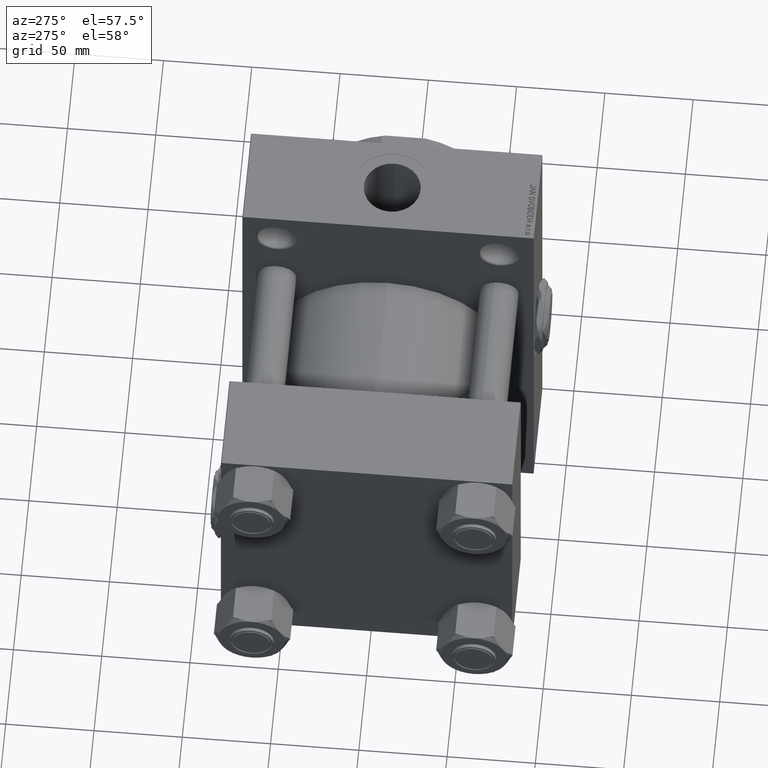
[diagram: clean part render]
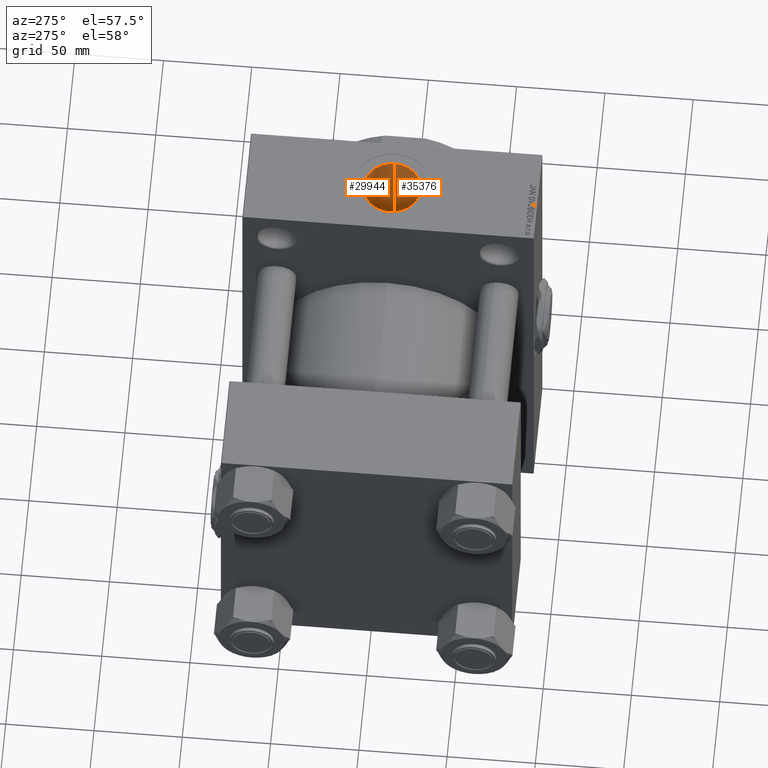
[diagram: same view with one multi-face feature highlighted, each face labeled with its STEP entity id]
A machine part, auxiliary view. The highlighted faces form ONE feature: a constant-radius fillet chain: 2 tangent blend faces with common blend radius 16.12 mm. The faces share edges in the B-rep.
Their STEP definitions:
[1] entity #35376 (Cylinder):
#722 = EDGE_CURVE ( 'NONE', #12323, #44570, #19705, .T. ) ;
#803 = AXIS2_PLACEMENT_3D ( 'NONE', #3509, #33490, #29729 ) ;
#835 = CARTESIAN_POINT ( 'NONE',  ( 176.6931090995301190, -12.08387147005236706, 61.57756697528341050 ) ) ;
#1822 = CARTESIAN_POINT ( 'NONE',  ( 150.1193842262599389, -2.789912960716225410, 47.92009399672301129 ) ) ;
#2066 = CARTESIAN_POINT ( 'NONE',  ( 165.0177403313186630, -16.10526306269807861, 45.21748191980999820 ) ) ;
#2321 = CARTESIAN_POINT ( 'NONE',  ( 150.6039488246599376, -4.827023044815289765, 47.76144096132668437 ) ) ;
#2428 = CIRCLE ( 'NONE', #803, 16.11999999999999389 ) ;
#2569 = CARTESIAN_POINT ( 'NONE',  ( 162.2424279243942351, -15.69133835691058998, 45.36322908574961588 ) ) ;
#3136 = CARTESIAN_POINT ( 'NONE',  ( 182.1200000000000614, 1.233548639465218517E-14, 62.75000000000001421 ) ) ;
#3509 = CARTESIAN_POINT ( 'NONE',  ( 165.9999999999999716, -3.116194171391063807E-14, 123.2999999999999972 ) ) ;
#4127 = CARTESIAN_POINT ( 'NONE',  ( 179.0858583400532495, -9.440766866681590486, 62.03836196695988292 ) ) ;
#4801 = CARTESIAN_POINT ( 'NONE',  ( 149.8799999999999955, -3.116194171391063807E-14, 123.2999999999999972 ) ) ;
#5270 = ORIENTED_EDGE ( 'NONE', *, *, #43371, .F. ) ;
#5601 = CARTESIAN_POINT ( 'NONE',  ( 152.6971890334757518, -9.210764258183600006, 47.12401255044404991 ) ) ;
#6982 = ORIENTED_EDGE ( 'NONE', *, *, #44591, .T. ) ;
#7293 = EDGE_CURVE ( 'NONE', #30975, #32994, #22079, .T. ) ;
#7433 = AXIS2_PLACEMENT_3D ( 'NONE', #43775, #21334, #44263 ) ;
#8150 = CARTESIAN_POINT ( 'NONE',  ( 178.1966697685148233, -10.56451674639078853, 61.85691085472824824 ) ) ;
#8261 = LINE ( 'NONE', #16059, #13544 ) ;
#9380 = CARTESIAN_POINT ( 'NONE',  ( 157.1578453829135356, -13.49619290271693650, 46.06505067908694429 ) ) ;
#9874 = CARTESIAN_POINT ( 'NONE',  ( 172.5268965211029695, -14.80427523608108231, 45.66526315275407910 ) ) ;
#10114 = CARTESIAN_POINT ( 'NONE',  ( 149.8799999999999955, -0.6969441322252637461, 48.00000000000000711 ) ) ;
#12323 = VERTEX_POINT ( 'NONE', #37987 ) ;
#12987 = CARTESIAN_POINT ( 'NONE',  ( 182.1199999999999761, -2.918781107368510798E-14, 146.2999999999999829 ) ) ;
#13544 = VECTOR ( 'NONE', #46062, 1000.000000000000000 ) ;
#13899 = CARTESIAN_POINT ( 'NONE',  ( 168.5014073238729679, -15.98700906778727315, 45.26084044427021524 ) ) ;
#14712 = CARTESIAN_POINT ( 'NONE',  ( 182.1200000000000045, -1.446404479253755815, 62.74999999999998579 ) ) ;
#15457 = CARTESIAN_POINT ( 'NONE',  ( 173.7400000000000091, -14.14025459459623590, 61.13604256083313260 ) ) ;
#16059 = CARTESIAN_POINT ( 'NONE',  ( 149.8799999999999955, -3.116194171391063807E-14, 146.2999999999999829 ) ) ;
#16200 = CARTESIAN_POINT ( 'NONE',  ( 177.7179939142464491, -11.09284231136825660, 61.76378836952420670 ) ) ;
#17178 = CARTESIAN_POINT ( 'NONE',  ( 149.9250024996750028, -1.394131805555121062, 47.98482823620874171 ) ) ;
#17427 = CARTESIAN_POINT ( 'NONE',  ( 162.9228835794722556, -15.83909022528225741, 45.31153598099023583 ) ) ;
#17478 = EDGE_LOOP ( 'NONE', ( #22585, #6982, #42115, #27172, #32127, #5270 ) ) ;
#17929 = CARTESIAN_POINT ( 'NONE',  ( 160.2496555027516081, -15.07580435985670242, 45.57198320915298950 ) ) ;
#18815 = VERTEX_POINT ( 'NONE', #4801 ) ;
#18864 = CARTESIAN_POINT ( 'NONE',  ( 150.8254561955876341, -5.483383170357729597, 47.69014482412352862 ) ) ;
#18990 = CARTESIAN_POINT ( 'NONE',  ( 181.1137499233100527, -5.651720081446736543, 62.49847482008421906 ) ) ;
#19029 = EDGE_CURVE ( 'NONE', #12323, #32994, #35401, .T. ) ;
#19705 = B_SPLINE_CURVE_WITH_KNOTS ( 'NONE', 3,
 ( #37073, #9874, #40113, #13899, #48409, #2066, #29035, #17427, #2569, #32556, #17929, #22647, #43894, #9380, #40362, #20964, #24748, #44383, #5601, #25246, #29279, #41799, #48158, #18864, #2321, #40607, #44633, #1822, #33302, #17178, #10114, #38014 ),
 .UNSPECIFIED., .F., .F.,
 ( 4, 2, 2, 2, 2, 2, 2, 2, 2, 2, 2, 2, 2, 2, 2, 4 ),
 ( 0.01730946740486644791, 0.02149205991460770640, 0.02567465242434896489, 0.02776594867921955076, 0.02985724493409013663, 0.03194854118896071904, 0.03403983744383130838, 0.03613113369870189079, 0.03822242995357248013, 0.04240502246331364494, 0.04345067059074896043, 0.04449631871818426898, 0.04658761497305493465, 0.04763326310049026402, 0.04867891122792559339, 0.05077020748279625212 ),
 .UNSPECIFIED. ) ;
#20843 = CYLINDRICAL_SURFACE ( 'NONE', #7433, 16.11999999999999389 ) ;
#20964 = CARTESIAN_POINT ( 'NONE',  ( 155.5016505005564795, -12.25223426699439422, 46.41205426771291798 ) ) ;
#21334 = DIRECTION ( 'NONE',  ( 0.000000000000000000, 0.000000000000000000, -1.000000000000000000 ) ) ;
#22079 = B_SPLINE_CURVE_WITH_KNOTS ( 'NONE', 3,
 ( #3136, #14712, #30098, #45446, #18990, #34357, #30597, #45952, #4127, #8150, #16200, #835, #34852, #31583, #46932, #15457 ),
 .UNSPECIFIED., .F., .F.,
 ( 4, 2, 2, 2, 2, 2, 2, 4 ),
 ( 0.01725131248101617956, 0.02156005667283688448, 0.02371442876874723521, 0.02586880086465758941, 0.02802317296056794360, 0.03017754505647830127, 0.03233191715238865893, 0.03448628924829900966 ),
 .UNSPECIFIED. ) ;
#22585 = ORIENTED_EDGE ( 'NONE', *, *, #29553, .F. ) ;
#22647 = CARTESIAN_POINT ( 'NONE',  ( 158.9619646494107883, -14.51938006037327611, 45.75230194618004731 ) ) ;
#23078 = DIRECTION ( 'NONE',  ( -0.000000000000000000, -0.000000000000000000, 1.000000000000000000 ) ) ;
#24082 = CARTESIAN_POINT ( 'NONE',  ( 182.1199999999999761, -2.918781107368510798E-14, 123.2999999999999972 ) ) ;
#24748 = CARTESIAN_POINT ( 'NONE',  ( 154.9799852017249862, -11.78519132341143738, 46.53349822920894496 ) ) ;
#25246 = CARTESIAN_POINT ( 'NONE',  ( 151.8313680696431049, -7.695846547749233046, 47.38004186343273716 ) ) ;
#25517 = VECTOR ( 'NONE', #23078, 1000.000000000000000 ) ;
#27172 = ORIENTED_EDGE ( 'NONE', *, *, #19029, .F. ) ;
#28914 = FACE_OUTER_BOUND ( 'NONE', #17478, .T. ) ;
#29035 = CARTESIAN_POINT ( 'NONE',  ( 164.3089344729780805, -16.04636164410583987, 45.23854938111714574 ) ) ;
#29279 = CARTESIAN_POINT ( 'NONE',  ( 151.6675240934841895, -7.386171131807184764, 47.42936155241066842 ) ) ;
#29553 = EDGE_CURVE ( 'NONE', #37043, #18815, #2428, .T. ) ;
#29729 = DIRECTION ( 'NONE',  ( 1.000000000000000000, 0.000000000000000000, 0.000000000000000000 ) ) ;
#30098 = CARTESIAN_POINT ( 'NONE',  ( 181.9288187961556389, -2.869591190657372781, 62.70005304133129442 ) ) ;
#30597 = CARTESIAN_POINT ( 'NONE',  ( 180.2299047929868152, -7.607813285098392164, 62.29021573812201495 ) ) ;
#30975 = VERTEX_POINT ( 'NONE', #39451 ) ;
#31583 = CARTESIAN_POINT ( 'NONE',  ( 174.9837016728169203, -13.40408882547880509, 61.30322131436631139 ) ) ;
#32127 = ORIENTED_EDGE ( 'NONE', *, *, #722, .T. ) ;
#32556 = CARTESIAN_POINT ( 'NONE',  ( 160.9058140718719585, -15.30969356532286341, 45.49344936859772304 ) ) ;
#32994 = VERTEX_POINT ( 'NONE', #48955 ) ;
#33302 = CARTESIAN_POINT ( 'NONE',  ( 150.0618984349625578, -2.440288002312380744, 47.93919931072274920 ) ) ;
#33490 = DIRECTION ( 'NONE',  ( -0.000000000000000000, -0.000000000000000000, -1.000000000000000000 ) ) ;
#34357 = CARTESIAN_POINT ( 'NONE',  ( 180.5529646384133002, -6.969834779711515438, 62.36523629281986558 ) ) ;
#34852 = CARTESIAN_POINT ( 'NONE',  ( 176.1469099290165161, -12.54658168107651051, 61.48445192794335412 ) ) ;
#35376 = ADVANCED_FACE ( 'NONE', ( #28914 ), #20843, .F. ) ;
#35401 = LINE ( 'NONE', #46009, #25517 ) ;
#37043 = VERTEX_POINT ( 'NONE', #24082 ) ;
#37073 = CARTESIAN_POINT ( 'NONE',  ( 173.7400000000000091, -14.14025459459623590, 45.86995966861100982 ) ) ;
#37987 = CARTESIAN_POINT ( 'NONE',  ( 173.7400000000000091, -14.14025459459623590, 45.86995966861100982 ) ) ;
#38014 = CARTESIAN_POINT ( 'NONE',  ( 149.8799999999999955, 5.879090918007074346E-15, 48.00000000000000711 ) ) ;
#39179 = DIRECTION ( 'NONE',  ( 0.000000000000000000, 0.000000000000000000, -1.000000000000000000 ) ) ;
#39451 = CARTESIAN_POINT ( 'NONE',  ( 182.1200000000000614, 1.233548639465218517E-14, 62.75000000000001421 ) ) ;
#40113 = CARTESIAN_POINT ( 'NONE',  ( 171.2382520628491704, -15.31019963486740032, 45.49424055631333630 ) ) ;
#40183 = CARTESIAN_POINT ( 'NONE',  ( 149.8799999999999955, 5.879090918007074346E-15, 48.00000000000000711 ) ) ;
#40362 = CARTESIAN_POINT ( 'NONE',  ( 156.5894716896488603, -13.10627878788852030, 46.17814940225067488 ) ) ;
#40607 = CARTESIAN_POINT ( 'NONE',  ( 150.3349467463776250, -3.818578580884662177, 47.84905752641297028 ) ) ;
#41753 = VECTOR ( 'NONE', #39179, 1000.000000000000000 ) ;
#41799 = CARTESIAN_POINT ( 'NONE',  ( 151.3622568011778071, -6.761054920981769634, 47.52249990912831379 ) ) ;
#42115 = ORIENTED_EDGE ( 'NONE', *, *, #7293, .T. ) ;
#42966 = LINE ( 'NONE', #12987, #41753 ) ;
#43371 = EDGE_CURVE ( 'NONE', #18815, #44570, #8261, .T. ) ;
#43775 = CARTESIAN_POINT ( 'NONE',  ( 165.9999999999999716, -3.116194171391063807E-14, 146.2999999999999829 ) ) ;
#43894 = CARTESIAN_POINT ( 'NONE',  ( 158.3439918909934079, -14.20269203266186686, 45.85214996005703370 ) ) ;
#44263 = DIRECTION ( 'NONE',  ( -1.000000000000000000, 0.000000000000000000, 0.000000000000000000 ) ) ;
#44383 = CARTESIAN_POINT ( 'NONE',  ( 153.5284591875429214, -10.30646944873276638, 46.89142198111669302 ) ) ;
#44570 = VERTEX_POINT ( 'NONE', #40183 ) ;
#44591 = EDGE_CURVE ( 'NONE', #37043, #30975, #42966, .T. ) ;
#44633 = CARTESIAN_POINT ( 'NONE',  ( 150.2558561993275248, -3.478434657325286672, 47.87504062993428988 ) ) ;
#45446 = CARTESIAN_POINT ( 'NONE',  ( 181.3520876524982555, -4.969372210910893095, 62.55685426934635984 ) ) ;
#45952 = CARTESIAN_POINT ( 'NONE',  ( 179.4978733992990954, -8.841743442041519074, 62.12707439263353137 ) ) ;
#46009 = CARTESIAN_POINT ( 'NONE',  ( 173.7400000000000091, -14.14025459459623590, 146.2999999999999829 ) ) ;
#46062 = DIRECTION ( 'NONE',  ( 0.000000000000000000, 0.000000000000000000, -1.000000000000000000 ) ) ;
#46932 = CARTESIAN_POINT ( 'NONE',  ( 174.3751098904970149, -13.79261230007028161, 61.21644931185165461 ) ) ;
#48158 = CARTESIAN_POINT ( 'NONE',  ( 151.2202184905598585, -6.444565633109859526, 47.56650002770068397 ) ) ;
#48409 = CARTESIAN_POINT ( 'NONE',  ( 167.1172731320739331, -16.14205161217259032, 45.20436757325734334 ) ) ;
#48955 = CARTESIAN_POINT ( 'NONE',  ( 173.7400000000000091, -14.14025459459623590, 61.13604256083313260 ) ) ;
[2] entity #29944 (Cylinder):
#304 = CARTESIAN_POINT ( 'NONE',  ( 158.9636608794598374, 14.52014148039138419, 45.75205679854095564 ) ) ;
#371 = CARTESIAN_POINT ( 'NONE',  ( 182.0585561406243471, 1.452386327798592669, 62.73423914292479253 ) ) ;
#551 = CARTESIAN_POINT ( 'NONE',  ( 149.9249704188250973, 1.393120938056549463, 47.98483942807536096 ) ) ;
#703 = AXIS2_PLACEMENT_3D ( 'NONE', #30370, #20436, #19942 ) ;
#801 = CARTESIAN_POINT ( 'NONE',  ( 162.9160592526729090, 15.83767543707250880, 45.31203073889371069 ) ) ;
#2322 = CIRCLE ( 'NONE', #703, 16.11999999999999389 ) ;
#3416 = CARTESIAN_POINT ( 'NONE',  ( 181.8763463745155775, 2.883672403985895194, 62.68777930985194757 ) ) ;
#3668 = CARTESIAN_POINT ( 'NONE',  ( 180.2195483388237278, 7.626863845352516158, 62.28785541091767186 ) ) ;
#4582 = CARTESIAN_POINT ( 'NONE',  ( 160.2490641726749914, 15.07552035386557243, 45.57207364129578053 ) ) ;
#4801 = CARTESIAN_POINT ( 'NONE',  ( 149.8799999999999955, -3.116194171391063807E-14, 123.2999999999999972 ) ) ;
#5621 = ORIENTED_EDGE ( 'NONE', *, *, #44591, .F. ) ;
#6945 = CARTESIAN_POINT ( 'NONE',  ( 177.7057295386113935, 11.10599076379968508, 61.76143863433413372 ) ) ;
#7381 = CARTESIAN_POINT ( 'NONE',  ( 165.0067877690202067, 16.10465261015763616, 45.21769947908528309 ) ) ;
#7626 = CARTESIAN_POINT ( 'NONE',  ( 173.7400000000000375, 14.14025459459616840, 45.86995966861103113 ) ) ;
#7942 = CARTESIAN_POINT ( 'NONE',  ( 182.1199999999999477, 0.3619438538048549980, 62.75000000000000000 ) ) ;
#7970 = FACE_OUTER_BOUND ( 'NONE', #11316, .T. ) ;
#8261 = LINE ( 'NONE', #16059, #13544 ) ;
#8875 = EDGE_CURVE ( 'NONE', #28639, #31604, #44477, .T. ) ;
#10153 = CARTESIAN_POINT ( 'NONE',  ( 173.7400000000000375, 14.14025459459616840, 45.86995966861103113 ) ) ;
#11158 = CARTESIAN_POINT ( 'NONE',  ( 171.2123721950988511, 15.26979174243738591, 45.50718491713758596 ) ) ;
#11225 = CARTESIAN_POINT ( 'NONE',  ( 182.0218531635884460, 1.812320719047275652, 62.72484100374321514 ) ) ;
#11316 = EDGE_LOOP ( 'NONE', ( #5621, #32119, #48418, #31089, #22480, #27547 ) ) ;
#11406 = CARTESIAN_POINT ( 'NONE',  ( 172.5045609595395035, 14.76570521449223605, 45.67323470544516795 ) ) ;
#12480 = EDGE_CURVE ( 'NONE', #28639, #30975, #34332, .T. ) ;
#12987 = CARTESIAN_POINT ( 'NONE',  ( 182.1199999999999761, -2.918781107368510798E-14, 146.2999999999999829 ) ) ;
#13544 = VECTOR ( 'NONE', #46062, 1000.000000000000000 ) ;
#14079 = CARTESIAN_POINT ( 'NONE',  ( 173.7400000000000091, 14.14025459459617373, 61.13604256083314681 ) ) ;
#14751 = CARTESIAN_POINT ( 'NONE',  ( 176.1594946012741900, 12.59722227134139949, 61.48085737170002574 ) ) ;
#15179 = CARTESIAN_POINT ( 'NONE',  ( 168.4952049674536738, 15.98782192495555954, 45.26054414299466089 ) ) ;
#15672 = CARTESIAN_POINT ( 'NONE',  ( 170.5455056036847736, 15.48187014673268713, 45.43504730123787283 ) ) ;
#15915 = CARTESIAN_POINT ( 'NONE',  ( 150.1188171930568558, 2.786749855319910818, 47.92028185637968107 ) ) ;
#16059 = CARTESIAN_POINT ( 'NONE',  ( 149.8799999999999955, -3.116194171391063807E-14, 146.2999999999999829 ) ) ;
#18776 = CARTESIAN_POINT ( 'NONE',  ( 173.7400000000000091, 14.14025459459617373, 61.13604256083314681 ) ) ;
#18815 = VERTEX_POINT ( 'NONE', #4801 ) ;
#19213 = CARTESIAN_POINT ( 'NONE',  ( 149.8799999999999955, 5.879090918007074346E-15, 48.00000000000000711 ) ) ;
#19459 = CARTESIAN_POINT ( 'NONE',  ( 151.8344616837607362, 7.701502031907020651, 47.37911783819649969 ) ) ;
#19942 = DIRECTION ( 'NONE',  ( 1.000000000000000000, 0.000000000000000000, 0.000000000000000000 ) ) ;
#19949 = CARTESIAN_POINT ( 'NONE',  ( 164.2980790581978283, 16.04512757477887064, 45.23898732334281902 ) ) ;
#20120 = AXIS2_PLACEMENT_3D ( 'NONE', #23329, #22587, #26636 ) ;
#20436 = DIRECTION ( 'NONE',  ( -0.000000000000000000, -0.000000000000000000, -1.000000000000000000 ) ) ;
#20804 = CARTESIAN_POINT ( 'NONE',  ( 173.7400000000000091, 14.14025459459617373, 146.2999999999999829 ) ) ;
#22480 = ORIENTED_EDGE ( 'NONE', *, *, #8875, .F. ) ;
#22558 = CARTESIAN_POINT ( 'NONE',  ( 179.0844003929186101, 9.442843510694224562, 62.03805049906818425 ) ) ;
#22587 = DIRECTION ( 'NONE',  ( 0.000000000000000000, 0.000000000000000000, -1.000000000000000000 ) ) ;
#23086 = CYLINDRICAL_SURFACE ( 'NONE', #20120, 16.11999999999999389 ) ;
#23236 = CARTESIAN_POINT ( 'NONE',  ( 154.7441410745596784, 11.54469890651621888, 46.59167934632901620 ) ) ;
#23329 = CARTESIAN_POINT ( 'NONE',  ( 165.9999999999999716, -3.116194171391063807E-14, 146.2999999999999829 ) ) ;
#23831 = VECTOR ( 'NONE', #36424, 1000.000000000000000 ) ;
#24082 = CARTESIAN_POINT ( 'NONE',  ( 182.1199999999999761, -2.918781107368510798E-14, 123.2999999999999972 ) ) ;
#26532 = CARTESIAN_POINT ( 'NONE',  ( 151.2216128799661590, 6.447800440742311956, 47.56606597250565471 ) ) ;
#26605 = CARTESIAN_POINT ( 'NONE',  ( 181.4465573356519883, 4.624612475451906235, 62.58031416136807223 ) ) ;
#26636 = DIRECTION ( 'NONE',  ( -1.000000000000000000, 0.000000000000000000, 0.000000000000000000 ) ) ;
#26675 = EDGE_CURVE ( 'NONE', #18815, #37043, #2322, .T. ) ;
#26782 = CARTESIAN_POINT ( 'NONE',  ( 173.1316445098233316, 14.47325224060510429, 45.76730704959881990 ) ) ;
#27029 = CARTESIAN_POINT ( 'NONE',  ( 150.6039412762756626, 4.827166512395204556, 47.76144253405185225 ) ) ;
#27547 = ORIENTED_EDGE ( 'NONE', *, *, #12480, .T. ) ;
#27743 = EDGE_CURVE ( 'NONE', #44570, #31604, #46368, .T. ) ;
#28639 = VERTEX_POINT ( 'NONE', #14079 ) ;
#29944 = ADVANCED_FACE ( 'NONE', ( #7970 ), #23086, .F. ) ;
#30315 = CARTESIAN_POINT ( 'NONE',  ( 167.1105234336490355, 16.14276192669088417, 45.20411446845385939 ) ) ;
#30370 = CARTESIAN_POINT ( 'NONE',  ( 165.9999999999999716, -3.116194171391063807E-14, 123.2999999999999972 ) ) ;
#30383 = CARTESIAN_POINT ( 'NONE',  ( 182.1077163658963229, 0.7267219843898016229, 62.74684105231320785 ) ) ;
#30877 = CARTESIAN_POINT ( 'NONE',  ( 181.7323002327978259, 3.586673343346733933, 62.65125153309103467 ) ) ;
#30975 = VERTEX_POINT ( 'NONE', #39451 ) ;
#31053 = CARTESIAN_POINT ( 'NONE',  ( 154.9967153907675197, 11.78568579095606239, 46.53122192616324071 ) ) ;
#31089 = ORIENTED_EDGE ( 'NONE', *, *, #27743, .T. ) ;
#31304 = CARTESIAN_POINT ( 'NONE',  ( 150.2553793376022782, 3.476328853959464116, 47.87519739541681929 ) ) ;
#31604 = VERTEX_POINT ( 'NONE', #10153 ) ;
#32119 = ORIENTED_EDGE ( 'NONE', *, *, #26675, .F. ) ;
#33898 = CARTESIAN_POINT ( 'NONE',  ( 181.3396580496003594, 4.967822892727451922, 62.55397629739029242 ) ) ;
#34324 = CARTESIAN_POINT ( 'NONE',  ( 150.0614714914799777, 2.437406301587406343, 47.93934136742533525 ) ) ;
#34332 = B_SPLINE_CURVE_WITH_KNOTS ( 'NONE', 3,
 ( #18776, #45487, #14751, #6945, #37927, #22558, #42445, #3668, #45740, #37677, #38669, #33898, #26605, #30877, #3416, #11225, #371, #30383, #7942, #34885 ),
 .UNSPECIFIED., .F., .F.,
 ( 4, 2, 2, 2, 2, 2, 2, 2, 2, 4 ),
 ( 0.000000000000000000, 0.004312828120254117749, 0.006469242180381145832, 0.008625656240508174782, 0.01078207030063520200, 0.01186027733069869999, 0.01293848436076219972, 0.01509489842088919571, 0.01617310545095268851, 0.01725131248101617956 ),
 .UNSPECIFIED. ) ;
#34572 = CARTESIAN_POINT ( 'NONE',  ( 151.3640296295077974, 6.764931955851407608, 47.52195258659887855 ) ) ;
#34818 = CARTESIAN_POINT ( 'NONE',  ( 156.5918825648012955, 13.10788518647637346, 46.17767731078850346 ) ) ;
#34885 = CARTESIAN_POINT ( 'NONE',  ( 182.1200000000000614, 1.233548639465218517E-14, 62.75000000000001421 ) ) ;
#35313 = CARTESIAN_POINT ( 'NONE',  ( 150.3345544224279138, 3.817021750896531618, 47.84918575400384810 ) ) ;
#36424 = DIRECTION ( 'NONE',  ( 0.000000000000000000, 0.000000000000000000, -1.000000000000000000 ) ) ;
#37043 = VERTEX_POINT ( 'NONE', #24082 ) ;
#37677 = CARTESIAN_POINT ( 'NONE',  ( 180.9712389402107249, 5.987294288113911733, 62.46460637718026732 ) ) ;
#37927 = CARTESIAN_POINT ( 'NONE',  ( 178.1940662405432647, 10.56757189381324835, 61.85639358677066468 ) ) ;
#38108 = CARTESIAN_POINT ( 'NONE',  ( 153.5300811663024376, 10.30902770126830781, 46.89092089420522314 ) ) ;
#38356 = CARTESIAN_POINT ( 'NONE',  ( 149.8800000000000523, 0.6966821524703092905, 48.00000000000002132 ) ) ;
#38606 = CARTESIAN_POINT ( 'NONE',  ( 155.7785938246813657, 12.46980303506202858, 46.35248263294047888 ) ) ;
#38669 = CARTESIAN_POINT ( 'NONE',  ( 181.1022244331990407, 5.648645018184515365, 62.49617607795300955 ) ) ;
#39091 = CARTESIAN_POINT ( 'NONE',  ( 157.1589983863507030, 13.49691046236680947, 46.06483709641717184 ) ) ;
#39179 = DIRECTION ( 'NONE',  ( 0.000000000000000000, 0.000000000000000000, -1.000000000000000000 ) ) ;
#39451 = CARTESIAN_POINT ( 'NONE',  ( 182.1200000000000614, 1.233548639465218517E-14, 62.75000000000001421 ) ) ;
#40183 = CARTESIAN_POINT ( 'NONE',  ( 149.8799999999999955, 5.879090918007074346E-15, 48.00000000000000711 ) ) ;
#41753 = VECTOR ( 'NONE', #39179, 1000.000000000000000 ) ;
#41892 = CARTESIAN_POINT ( 'NONE',  ( 160.9038791272143385, 15.30897812509721234, 45.49368879779712671 ) ) ;
#42445 = CARTESIAN_POINT ( 'NONE',  ( 179.4892412334476148, 8.854658549122547129, 62.12520427157874536 ) ) ;
#42874 = CARTESIAN_POINT ( 'NONE',  ( 150.8258789888302829, 5.484731270650820001, 47.69000706003646428 ) ) ;
#42966 = LINE ( 'NONE', #12987, #41753 ) ;
#43371 = EDGE_CURVE ( 'NONE', #18815, #44570, #8261, .T. ) ;
#44477 = LINE ( 'NONE', #20804, #23831 ) ;
#44570 = VERTEX_POINT ( 'NONE', #40183 ) ;
#44591 = EDGE_CURVE ( 'NONE', #37043, #30975, #42966, .T. ) ;
#45487 = CARTESIAN_POINT ( 'NONE',  ( 175.0114902370778793, 13.44427459160925054, 61.29701690628886013 ) ) ;
#45668 = CARTESIAN_POINT ( 'NONE',  ( 152.6987612004010941, 9.212534709677337119, 47.12358491237535674 ) ) ;
#45740 = CARTESIAN_POINT ( 'NONE',  ( 180.5450239783026234, 6.987262028868567398, 62.36336777575549917 ) ) ;
#46062 = DIRECTION ( 'NONE',  ( 0.000000000000000000, 0.000000000000000000, -1.000000000000000000 ) ) ;
#46164 = CARTESIAN_POINT ( 'NONE',  ( 151.6701776939642343, 7.391354796697718221, 47.42855844614703642 ) ) ;
#46368 = B_SPLINE_CURVE_WITH_KNOTS ( 'NONE', 3,
 ( #19213, #38356, #551, #34324, #15915, #31304, #35313, #27029, #42874, #26532, #34572, #46164, #19459, #45668, #38108, #23236, #31053, #46657, #38606, #34818, #39091, #46404, #304, #4582, #41892, #49681, #801, #19949, #7381, #30315, #15179, #15672, #11158, #11406, #26782, #7626 ),
 .UNSPECIFIED., .F., .F.,
 ( 4, 2, 2, 2, 2, 2, 2, 2, 2, 2, 2, 2, 2, 2, 2, 2, 2, 4 ),
 ( 0.05077020748279625212, 0.05286071762403861396, 0.05390597269465979141, 0.05495122776528096886, 0.05704173790652335152, 0.05808699297714454285, 0.05913224804776573418, 0.06331326833025055500, 0.06435852340087175327, 0.06540377847149295154, 0.06749428861273540359, 0.06958479875397786951, 0.07167530889522033544, 0.07376581903646280136, 0.07585632917770526729, 0.08003734946019026852, 0.08212785960143273445, 0.08421836974267520037 ),
 .UNSPECIFIED. ) ;
#46404 = CARTESIAN_POINT ( 'NONE',  ( 158.3439023535990486, 14.20260787286860094, 45.85217266780416878 ) ) ;
#46657 = CARTESIAN_POINT ( 'NONE',  ( 155.5137491360880517, 12.24798777652973669, 46.41167739837656825 ) ) ;
#48418 = ORIENTED_EDGE ( 'NONE', *, *, #43371, .T. ) ;
#49681 = CARTESIAN_POINT ( 'NONE',  ( 162.2373763381498861, 15.69005807395346785, 45.36367058893583248 ) ) ;